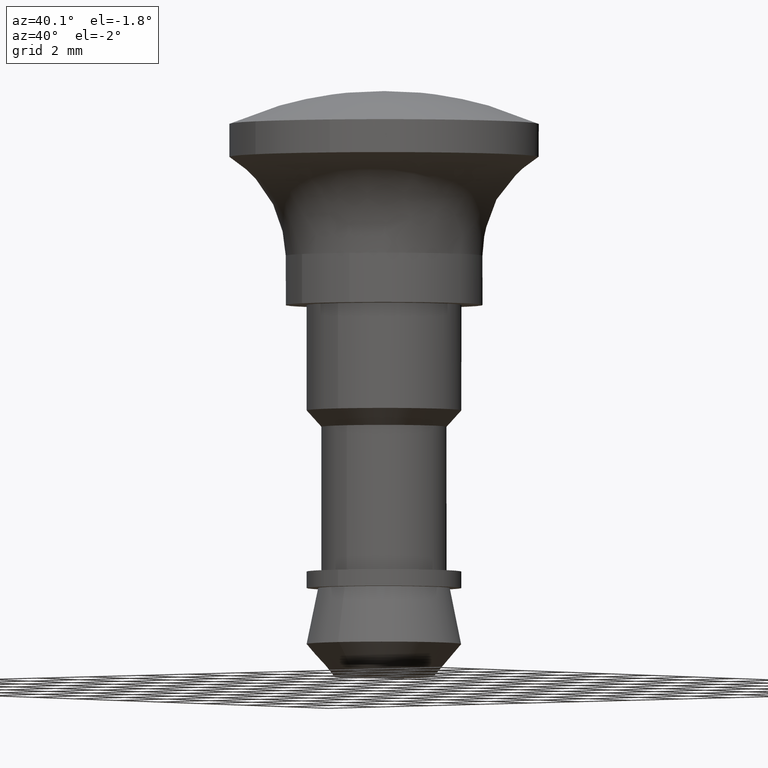
[diagram: clean part render]
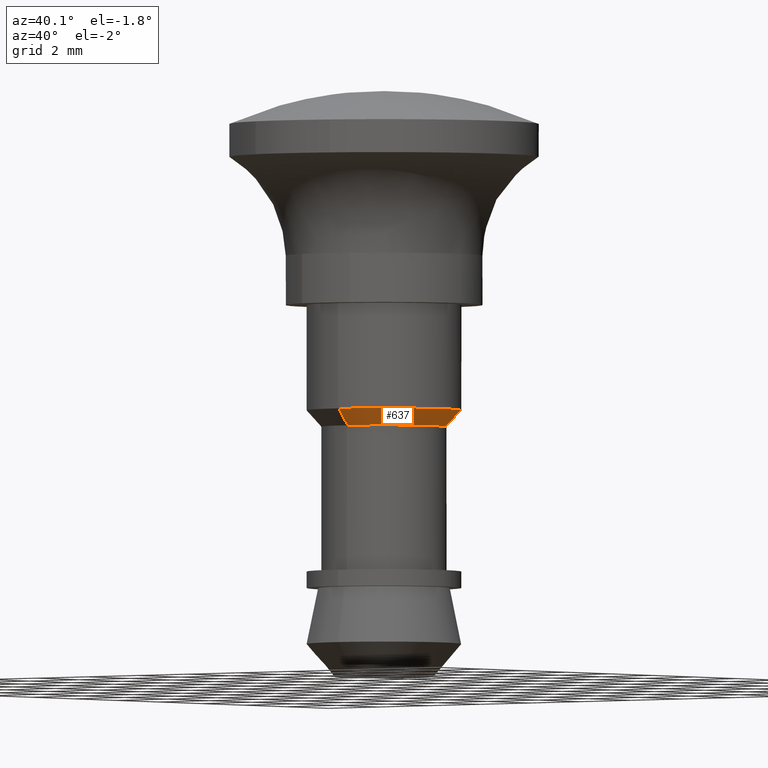
[diagram: same view with one face highlighted and labeled with its STEP entity id]
A machine part, auxiliary view. The second image highlights one B-rep face of the part: STEP entity #637.
In plain terms, the highlighted face is a freeform B-spline surface patch.
Its self-contained STEP definition (entity closure, byte-faithful):
#284=CARTESIAN_POINT('',(1.981144114829501,1.263949364601823,-3.199999999999894));
#285=VERTEX_POINT('',#284);
#347=CARTESIAN_POINT('',(0.184378874960657,-2.342755734272863,-3.200000000000077));
#348=VERTEX_POINT('',#347);
#362=CARTESIAN_POINT('',(2.350000000000000,0.0,-3.200000000000105));
#363=VERTEX_POINT('',#362);
#364=CARTESIAN_POINT('',(2.350000000000000,0.0,-3.200000000000105));
#365=CARTESIAN_POINT('',(2.350000000000000,-2.172317655396381,-3.200000000000105));
#366=CARTESIAN_POINT('',(0.184378874960656,-2.342755734272863,-3.200000000000077));
#374=(BOUNDED_CURVE()B_SPLINE_CURVE(2,(#364,#365,#366),.UNSPECIFIED.,.F.,.U.)B_SPLINE_CURVE_WITH_KNOTS((3,3),(0.500000000000000,0.736331300632735),.UNSPECIFIED.)CURVE()GEOMETRIC_REPRESENTATION_ITEM()RATIONAL_B_SPLINE_CURVE((1.0,0.723120658605234,0.969723356171749))REPRESENTATION_ITEM(''));
#375=EDGE_CURVE('',#363,#348,#374,.T.);
#377=CARTESIAN_POINT('',(1.981144114829502,1.263949364601823,-3.199999999999894));
#378=CARTESIAN_POINT('',(2.350000000000000,0.685795930145313,-3.200000000000105));
#379=CARTESIAN_POINT('',(2.350000000000000,0.0,-3.200000000000105));
#387=(BOUNDED_CURVE()B_SPLINE_CURVE(2,(#377,#378,#379),.UNSPECIFIED.,.F.,.U.)B_SPLINE_CURVE_WITH_KNOTS((3,3),(0.407950112627086,0.500000000000000),.UNSPECIFIED.)CURVE()GEOMETRIC_REPRESENTATION_ITEM()RATIONAL_B_SPLINE_CURVE((0.863729296954637,0.892156848783726,1.0))REPRESENTATION_ITEM(''));
#388=EDGE_CURVE('',#285,#363,#387,.T.);
#504=CARTESIAN_POINT('',(1.601776092840514,1.021916507551051,-3.699999999999883));
#505=VERTEX_POINT('',#504);
#553=CARTESIAN_POINT('',(0.149072281933327,-1.894142934095344,-3.699999999993049));
#554=VERTEX_POINT('',#553);
#568=CARTESIAN_POINT('',(0.149072281933327,-1.894142934095344,-3.699999999993049));
#569=CARTESIAN_POINT('',(0.184378874960657,-2.342755734272863,-3.200000000000077));
#570=QUASI_UNIFORM_CURVE('',1,(#568,#569),.UNSPECIFIED.,.F.,.U.);
#571=EDGE_CURVE('',#554,#348,#570,.T.);
#577=CARTESIAN_POINT('',(1.601776092840514,1.021916507551051,-3.699999999999883));
#578=CARTESIAN_POINT('',(1.981144114829501,1.263949364601823,-3.199999999999894));
#579=QUASI_UNIFORM_CURVE('',1,(#577,#578),.UNSPECIFIED.,.F.,.U.);
#580=EDGE_CURVE('',#505,#285,#579,.T.);
#585=CARTESIAN_POINT('',(0.148189617055968,-1.882927614088444,-3.712500000000106));
#586=CARTESIAN_POINT('',(2.031117231144412,-1.734737997032476,-3.712500000000106));
#587=CARTESIAN_POINT('',(1.882927614088444,0.148189617055968,-3.712500000000106));
#588=CARTESIAN_POINT('',(1.845928344209992,0.618309915220547,-3.712500000000106));
#589=CARTESIAN_POINT('',(1.592291892292633,1.015865686121517,-3.712500000000106));
#590=CARTESIAN_POINT('',(0.185283606408050,-2.354251437277471,-3.187187500000105));
#591=CARTESIAN_POINT('',(2.539535043685521,-2.168967830869422,-3.187187500000106));
#592=CARTESIAN_POINT('',(2.354251437277471,0.185283606408050,-3.187187500000105));
#593=CARTESIAN_POINT('',(2.307990718788976,0.773081766765417,-3.187187500000105));
#594=CARTESIAN_POINT('',(1.990865420394814,1.270151456560511,-3.187187500000105));
#602=(BOUNDED_SURFACE()B_SPLINE_SURFACE(2,1,((#585,#590),(#586,#591),(#587,#592),(#588,#593),(#589,#594)),.UNSPECIFIED.,.F.,.F.,.U.)B_SPLINE_SURFACE_WITH_KNOTS((3,2,3),(2,2),(0.0,3.912713086871570,5.164781274670473),(0.0,1.0),.UNSPECIFIED.)GEOMETRIC_REPRESENTATION_ITEM()RATIONAL_B_SPLINE_SURFACE(((1.0,1.0),(0.707106781186548,0.707106781186548),(1.0,1.0),(0.906274169979695,0.906274169979695),(0.872532871172386,0.872532871172386)))REPRESENTATION_ITEM('')SURFACE());
#603=CARTESIAN_POINT('',(1.900000000000000,0.0,-3.700000000000105));
#604=VERTEX_POINT('',#603);
#605=CARTESIAN_POINT('',(1.601776092840514,1.021916507551051,-3.699999999999883));
#606=CARTESIAN_POINT('',(1.900000000000000,0.554473305224667,-3.700000000000105));
#607=CARTESIAN_POINT('',(1.900000000000000,0.0,-3.700000000000105));
#615=(BOUNDED_CURVE()B_SPLINE_CURVE(2,(#605,#606,#607),.UNSPECIFIED.,.F.,.U.)B_SPLINE_CURVE_WITH_KNOTS((3,3),(0.407950112626968,0.500000000000000),.UNSPECIFIED.)CURVE()GEOMETRIC_REPRESENTATION_ITEM()RATIONAL_B_SPLINE_CURVE((0.863729296954564,0.892156848783588,1.0))REPRESENTATION_ITEM(''));
#616=EDGE_CURVE('',#505,#604,#615,.T.);
#617=ORIENTED_EDGE('',*,*,#616,.F.);
#618=ORIENTED_EDGE('',*,*,#580,.T.);
#619=ORIENTED_EDGE('',*,*,#388,.T.);
#620=ORIENTED_EDGE('',*,*,#375,.T.);
#621=ORIENTED_EDGE('',*,*,#571,.F.);
#622=CARTESIAN_POINT('',(1.900000000000000,0.0,-3.700000000000105));
#623=CARTESIAN_POINT('',(1.900000000000000,-1.756341934057731,-3.700000000000106));
#624=CARTESIAN_POINT('',(0.149072281933327,-1.894142934095344,-3.699999999993050));
#632=(BOUNDED_CURVE()B_SPLINE_CURVE(2,(#622,#623,#624),.UNSPECIFIED.,.F.,.U.)B_SPLINE_CURVE_WITH_KNOTS((3,3),(0.500000000000000,0.736331300623731),.UNSPECIFIED.)CURVE()GEOMETRIC_REPRESENTATION_ITEM()RATIONAL_B_SPLINE_CURVE((1.0,0.723120658615783,0.969723356152958))REPRESENTATION_ITEM(''));
#633=EDGE_CURVE('',#604,#554,#632,.T.);
#634=ORIENTED_EDGE('',*,*,#633,.F.);
#635=EDGE_LOOP('',(#617,#618,#619,#620,#621,#634));
#636=FACE_OUTER_BOUND('',#635,.T.);
#637=ADVANCED_FACE('',(#636),#602,.T.);